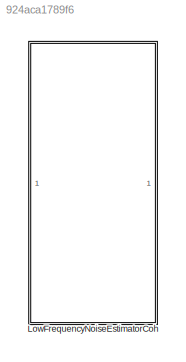
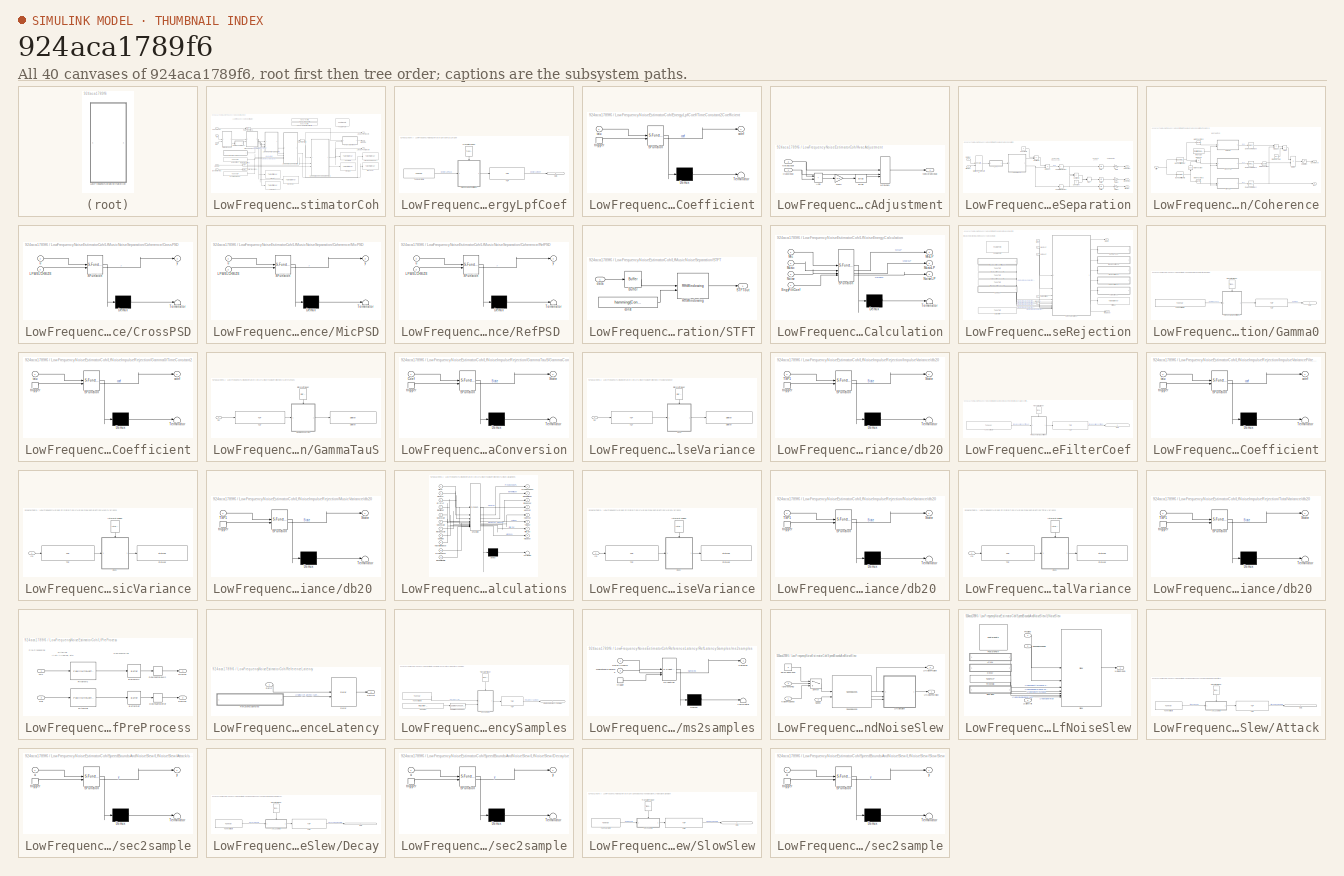
[diagram: thumbnail index - all 40 canvases of the model, root first then tree order]
MODEL slx_924aca1789f6
KIND library
CONFIG AbsTol = auto
CONFIG EnableMultiTasking = off
CONFIG FixedStep = auto
CONFIG MaxStep = auto
CONFIG MinStep = auto
CONFIG RelTol = 1e-3
CONFIG SampleTimeConstraint = Unconstrained
CONFIG SolverName = VariableStepAuto
CONFIG StartTime = 0.0
CONFIG StopTime = 10.0
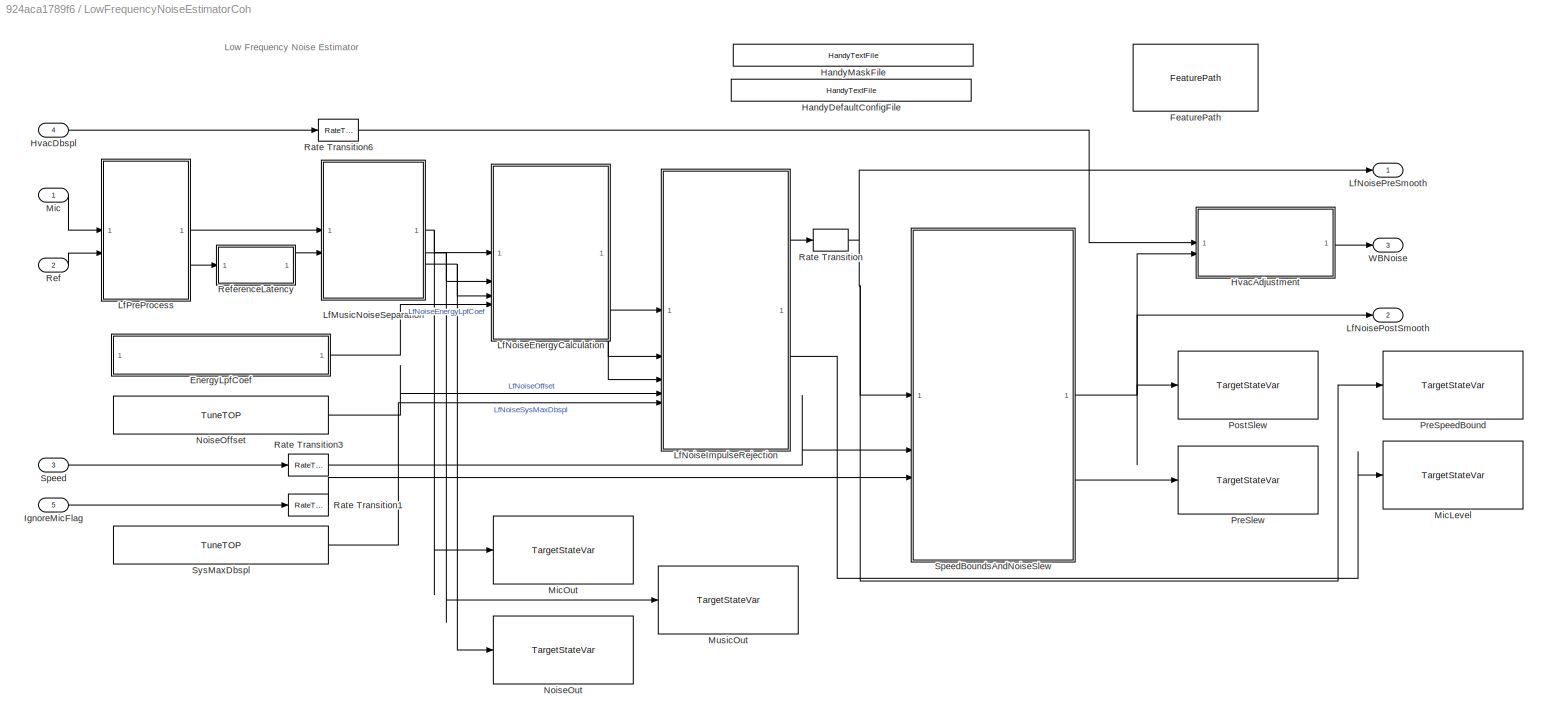
BLOCK [SubSystem] LowFrequencyNoiseEstimatorCoh
BLOCK [SubSystem] LowFrequencyNoiseEstimatorCoh/EnergyLpfCoef
BLOCK [Outport] LowFrequencyNoiseEstimatorCoh/EnergyLpfCoef/Out1
  IconDisplay = Signal name
  VectorParamsAs1DForOutWhenUnconnected = off
BLOCK [Reference] LowFrequencyNoiseEstimatorCoh/EnergyLpfCoef/TOP  REF=TOP/TOP
  SourceBlock = TOP/TOP
  SourceProductName = Bose Talaria
  SourceType = Talaria Target Overlay Parameter
BLOCK [SubSystem] LowFrequencyNoiseEstimatorCoh/EnergyLpfCoef/TimeConstant2Coefficient
  ErrorFcn = Stateflow.Translate.translate
  PermitHierarchicalResolution = ExplicitOnly
  SFBlockType = MATLAB Function
  TreatAsAtomicUnit = on
BLOCK [Demux] LowFrequencyNoiseEstimatorCoh/EnergyLpfCoef/TimeConstant2Coefficient/ Demux 
  Outputs = 1
BLOCK [S-Function] LowFrequencyNoiseEstimatorCoh/EnergyLpfCoef/TimeConstant2Coefficient/ SFunction 
  EnableBusSupport = off
  FunctionName = sf_sfun
  Parameters = DecRate3
  PortCounts = [2 2]
  SFcnIsStateOwnerBlock = off
  SFunctionDeploymentMode = off
  Tag = Stateflow S-Function 9
BLOCK [Terminator] LowFrequencyNoiseEstimatorCoh/EnergyLpfCoef/TimeConstant2Coefficient/ Terminator 
BLOCK [Outport] LowFrequencyNoiseEstimatorCoh/EnergyLpfCoef/TimeConstant2Coefficient/coef
  VectorParamsAs1DForOutWhenUnconnected = off
BLOCK [Inport] LowFrequencyNoiseEstimatorCoh/EnergyLpfCoef/TimeConstant2Coefficient/tau
BLOCK [TriggerPort] LowFrequencyNoiseEstimatorCoh/EnergyLpfCoef/TimeConstant2Coefficient/trigger
  ShowOutputPort = on
  StatesWhenEnabling = held
  TriggerType = function-call
  VariantControl = Variant
BLOCK [Reference] LowFrequencyNoiseEstimatorCoh/EnergyLpfCoef/TranslateTrigger  REF=TuneVar/TranslateTrigger
  NameLocation = left
  SourceBlock = TuneVar/TranslateTrigger
  SourceProductName = Bose Talaria
  SourceType = Talaria Translate Trigger
BLOCK [Reference] LowFrequencyNoiseEstimatorCoh/EnergyLpfCoef/Tune Variable  REF=TuneVar/TuneVar
  SourceBlock = TuneVar/TuneVar
  SourceProductName = Bose Talaria
  SourceType = Talaria Tune Variable
BLOCK [Reference] LowFrequencyNoiseEstimatorCoh/FeaturePath  REF=FeaturePath/FeaturePath
  SourceBlock = FeaturePath/FeaturePath
  SourceProductName = Bose Talaria
  SourceType = Talaria Feature Path
BLOCK [Reference] LowFrequencyNoiseEstimatorCoh/HandyDefaultConfigFile  REF=HandyTextFile/HandyTextFile
  SourceBlock = HandyTextFile/HandyTextFile
  SourceProductName = Bose Talaria
  SourceType = Talaria Handy Text File
BLOCK [Reference] LowFrequencyNoiseEstimatorCoh/HandyMaskFile  REF=HandyTextFile/HandyTextFile
  SourceBlock = HandyTextFile/HandyTextFile
  SourceProductName = Bose Talaria
  SourceType = Talaria Handy Text File
BLOCK [SubSystem] LowFrequencyNoiseEstimatorCoh/HvacAdjustment
BLOCK [Sum] LowFrequencyNoiseEstimatorCoh/HvacAdjustment/Add
  IconShape = rectangular
BLOCK [Bias] LowFrequencyNoiseEstimatorCoh/HvacAdjustment/Bias
  Bias = 3.7
  SaturateOnIntegerOverflow = off
BLOCK [Gain] LowFrequencyNoiseEstimatorCoh/HvacAdjustment/Gain
  Gain = 0.5
BLOCK [Inport] LowFrequencyNoiseEstimatorCoh/HvacAdjustment/HvacDbspl
BLOCK [MinMax] LowFrequencyNoiseEstimatorCoh/HvacAdjustment/MinMax1
  Function = max
  Inputs = 3
BLOCK [Inport] LowFrequencyNoiseEstimatorCoh/HvacAdjustment/NoiseDbspl
  Port = 2
BLOCK [Outport] LowFrequencyNoiseEstimatorCoh/HvacAdjustment/WbNoiseDbspl
  VectorParamsAs1DForOutWhenUnconnected = off
BLOCK [Inport] LowFrequencyNoiseEstimatorCoh/HvacDbspl
  Port = 4
BLOCK [Inport] LowFrequencyNoiseEstimatorCoh/IgnoreMicFlag
  Port = 5
BLOCK [SubSystem] LowFrequencyNoiseEstimatorCoh/LfMusicNoiseSeparation
BLOCK [SubSystem] LowFrequencyNoiseEstimatorCoh/LfMusicNoiseSeparation/Coherence
BLOCK [Sum] LowFrequencyNoiseEstimatorCoh/LfMusicNoiseSeparation/Coherence/Add1
  IconShape = rectangular
BLOCK [Reference] LowFrequencyNoiseEstimatorCoh/LfMusicNoiseSeparation/Coherence/BandLimitingMic  REF=matrix_library/Submatrix
  SourceBlock = matrix_library/Submatrix
  SourceType = Submatrix
BLOCK [Reference] LowFrequencyNoiseEstimatorCoh/LfMusicNoiseSeparation/Coherence/BandLimitingRef  REF=matrix_library/Submatrix
  SourceBlock = matrix_library/Submatrix
  SourceType = Submatrix
BLOCK [Outport] LowFrequencyNoiseEstimatorCoh/LfMusicNoiseSeparation/Coherence/Coherence
  VectorParamsAs1DForOutWhenUnconnected = off
BLOCK [SubSystem] LowFrequencyNoiseEstimatorCoh/LfMusicNoiseSeparation/Coherence/CrossPSD
  ErrorFcn = Stateflow.Translate.translate
  PermitHierarchicalResolution = ExplicitOnly
  SFBlockType = MATLAB Function
  TreatAsAtomicUnit = on
BLOCK [Demux] LowFrequencyNoiseEstimatorCoh/LfMusicNoiseSeparation/Coherence/CrossPSD/ Demux 
  Outputs = 1
BLOCK [S-Function] LowFrequencyNoiseEstimatorCoh/LfMusicNoiseSeparation/Coherence/CrossPSD/ SFunction 
  EnableBusSupport = off
  FunctionName = sf_sfun
  PortCounts = [2 2]
  SFcnIsStateOwnerBlock = off
  SFunctionDeploymentMode = off
  Tag = Stateflow S-Function 22
BLOCK [Terminator] LowFrequencyNoiseEstimatorCoh/LfMusicNoiseSeparation/Coherence/CrossPSD/ Terminator 
BLOCK [Inport] LowFrequencyNoiseEstimatorCoh/LfMusicNoiseSeparation/Coherence/CrossPSD/LFWELCHSIZE
  Port = 2
BLOCK [Inport] LowFrequencyNoiseEstimatorCoh/LfMusicNoiseSeparation/Coherence/CrossPSD/u
BLOCK [Outport] LowFrequencyNoiseEstimatorCoh/LfMusicNoiseSeparation/Coherence/CrossPSD/y
  VectorParamsAs1DForOutWhenUnconnected = off
BLOCK [Product] LowFrequencyNoiseEstimatorCoh/LfMusicNoiseSeparation/Coherence/Divide
  Inputs = /*
BLOCK [Constant] LowFrequencyNoiseEstimatorCoh/LfMusicNoiseSeparation/Coherence/DivideByZero
  OutDataTypeStr = single
  Value = eps
BLOCK [DownSample] LowFrequencyNoiseEstimatorCoh/LfMusicNoiseSeparation/Coherence/DownsampleGxx
  InputProcessing = Elements as channels (sample based)
  N = Config.CoherenceWelchSize
  RateOptions = Allow multirate processing
BLOCK [DownSample] LowFrequencyNoiseEstimatorCoh/LfMusicNoiseSeparation/Coherence/DownsampleGyx
  InputProcessing = Elements as channels (sample based)
  N = Config.CoherenceWelchSize
  RateOptions = Allow multirate processing
BLOCK [DownSample] LowFrequencyNoiseEstimatorCoh/LfMusicNoiseSeparation/Coherence/DownsampleGyy
  InputProcessing = Elements as channels (sample based)
  N = Config.CoherenceWelchSize
  RateOptions = Allow multirate processing
BLOCK [Outport] LowFrequencyNoiseEstimatorCoh/LfMusicNoiseSeparation/Coherence/Gyy
  Port = 2
  VectorParamsAs1DForOutWhenUnconnected = off
BLOCK [Math] LowFrequencyNoiseEstimatorCoh/LfMusicNoiseSeparation/Coherence/Math Function
  NameLocation = right
  Operator = conj
  SignedPower = on
BLOCK [Math] LowFrequencyNoiseEstimatorCoh/LfMusicNoiseSeparation/Coherence/Math Function1
  Operator = magnitude^2
  SignedPower = on
BLOCK [Math] LowFrequencyNoiseEstimatorCoh/LfMusicNoiseSeparation/Coherence/Math Function2
  Operator = magnitude^2
  SignedPower = on
BLOCK [Math] LowFrequencyNoiseEstimatorCoh/LfMusicNoiseSeparation/Coherence/Math Function3
  Operator = magnitude^2
  SignedPower = on
BLOCK [SubSystem] LowFrequencyNoiseEstimatorCoh/LfMusicNoiseSeparation/Coherence/MicPSD
  ErrorFcn = Stateflow.Translate.translate
  PermitHierarchicalResolution = ExplicitOnly
  SFBlockType = MATLAB Function
  TreatAsAtomicUnit = on
BLOCK [Demux] LowFrequencyNoiseEstimatorCoh/LfMusicNoiseSeparation/Coherence/MicPSD/ Demux 
  Outputs = 1
BLOCK [S-Function] LowFrequencyNoiseEstimatorCoh/LfMusicNoiseSeparation/Coherence/MicPSD/ SFunction 
  EnableBusSupport = off
  FunctionName = sf_sfun
  PortCounts = [2 2]
  SFcnIsStateOwnerBlock = off
  SFunctionDeploymentMode = off
  Tag = Stateflow S-Function 25
BLOCK [Terminator] LowFrequencyNoiseEstimatorCoh/LfMusicNoiseSeparation/Coherence/MicPSD/ Terminator 
BLOCK [Inport] LowFrequencyNoiseEstimatorCoh/LfMusicNoiseSeparation/Coherence/MicPSD/LFWELCHSIZE
  Port = 2
BLOCK [Inport] LowFrequencyNoiseEstimatorCoh/LfMusicNoiseSeparation/Coherence/MicPSD/u
BLOCK [Outport] LowFrequencyNoiseEstimatorCoh/LfMusicNoiseSeparation/Coherence/MicPSD/y
  VectorParamsAs1DForOutWhenUnconnected = off
BLOCK [Product] LowFrequencyNoiseEstimatorCoh/LfMusicNoiseSeparation/Coherence/Product
  RndMeth = Zero
BLOCK [Product] LowFrequencyNoiseEstimatorCoh/LfMusicNoiseSeparation/Coherence/Product3
  RndMeth = Zero
BLOCK [SubSystem] LowFrequencyNoiseEstimatorCoh/LfMusicNoiseSeparation/Coherence/RefPSD 
  ErrorFcn = Stateflow.Translate.translate
  PermitHierarchicalResolution = ExplicitOnly
  SFBlockType = MATLAB Function
  TreatAsAtomicUnit = on
BLOCK [Demux] LowFrequencyNoiseEstimatorCoh/LfMusicNoiseSeparation/Coherence/RefPSD / Demux 
  Outputs = 1
BLOCK [S-Function] LowFrequencyNoiseEstimatorCoh/LfMusicNoiseSeparation/Coherence/RefPSD / SFunction 
  EnableBusSupport = off
  FunctionName = sf_sfun
  PortCounts = [2 2]
  SFcnIsStateOwnerBlock = off
  SFunctionDeploymentMode = off
  Tag = Stateflow S-Function 20
BLOCK [Terminator] LowFrequencyNoiseEstimatorCoh/LfMusicNoiseSeparation/Coherence/RefPSD / Terminator 
BLOCK [Inport] LowFrequencyNoiseEstimatorCoh/LfMusicNoiseSeparation/Coherence/RefPSD /LFWELCHSIZE
  Port = 2
BLOCK [Inport] LowFrequencyNoiseEstimatorCoh/LfMusicNoiseSeparation/Coherence/RefPSD /u
BLOCK [Outport] LowFrequencyNoiseEstimatorCoh/LfMusicNoiseSeparation/Coherence/RefPSD /y
  VectorParamsAs1DForOutWhenUnconnected = off
BLOCK [Saturate] LowFrequencyNoiseEstimatorCoh/LfMusicNoiseSeparation/Coherence/Saturation
  LowerLimit = 0
  UpperLimit = 1
BLOCK [Inport] LowFrequencyNoiseEstimatorCoh/LfMusicNoiseSeparation/Coherence/StftIn
BLOCK [Constant] LowFrequencyNoiseEstimatorCoh/LfMusicNoiseSeparation/Coherence/WelchSize
  OutDataTypeStr = single
  Value = Config.CoherenceWelchSize
BLOCK [Constant] LowFrequencyNoiseEstimatorCoh/LfMusicNoiseSeparation/Constant
  OutDataTypeStr = single
  Value = 0
BLOCK [Constant] LowFrequencyNoiseEstimatorCoh/LfMusicNoiseSeparation/Constant1
  OutDataTypeStr = single
BLOCK [Gain] LowFrequencyNoiseEstimatorCoh/LfMusicNoiseSeparation/Gain
  Gain = 2/Config.CoherenceFftSize
BLOCK [Gain] LowFrequencyNoiseEstimatorCoh/LfMusicNoiseSeparation/Gain2
  Gain = 2/Config.CoherenceFftSize
BLOCK [Gain] LowFrequencyNoiseEstimatorCoh/LfMusicNoiseSeparation/Gain3
  Gain = 2/Config.CoherenceFftSize
BLOCK [Concatenate] LowFrequencyNoiseEstimatorCoh/LfMusicNoiseSeparation/Matrix Concatenate1
  ConcatenateDimension = 2
  Mode = Multidimensional array
BLOCK [MinMax] LowFrequencyNoiseEstimatorCoh/LfMusicNoiseSeparation/Max
  Function = max
  Inputs = 2
BLOCK [Inport] LowFrequencyNoiseEstimatorCoh/LfMusicNoiseSeparation/MicDec
BLOCK [Outport] LowFrequencyNoiseEstimatorCoh/LfMusicNoiseSeparation/MicOut
  VectorParamsAs1DForOutWhenUnconnected = off
BLOCK [Outport] LowFrequencyNoiseEstimatorCoh/LfMusicNoiseSeparation/MusicOut
  Port = 2
  VectorParamsAs1DForOutWhenUnconnected = off
BLOCK [Outport] LowFrequencyNoiseEstimatorCoh/LfMusicNoiseSeparation/NoiseOut
  Port = 3
  VectorParamsAs1DForOutWhenUnconnected = off
BLOCK [Product] LowFrequencyNoiseEstimatorCoh/LfMusicNoiseSeparation/Product
  RndMeth = Zero
BLOCK [Inport] LowFrequencyNoiseEstimatorCoh/LfMusicNoiseSeparation/RefDec
  Port = 2
BLOCK [SubSystem] LowFrequencyNoiseEstimatorCoh/LfMusicNoiseSeparation/STFT
BLOCK [Buffer] LowFrequencyNoiseEstimatorCoh/LfMusicNoiseSeparation/STFT/Buffer
  N = Config.CoherenceFftSize
  V = Config.CoherenceOverlap
BLOCK [Reference] LowFrequencyNoiseEstimatorCoh/LfMusicNoiseSeparation/STFT/RfftWindowing  REF=RfftLib/RfftWindowing
  Description = This block computes the Fourier Transform using an optimized FFT for real 2-channel input.
  SourceBlock = RfftLib/RfftWindowing
  SourceProductName = Bose Blocklib
  SourceType = Real FFT With Windowing
BLOCK [Outport] LowFrequencyNoiseEstimatorCoh/LfMusicNoiseSeparation/STFT/STFTout
  VectorParamsAs1DForOutWhenUnconnected = off
BLOCK [Constant] LowFrequencyNoiseEstimatorCoh/LfMusicNoiseSeparation/STFT/const
  OutDataTypeStr = single
  Value = hamming(Config.CoherenceFftSize)
BLOCK [Inport] LowFrequencyNoiseEstimatorCoh/LfMusicNoiseSeparation/STFT/data
BLOCK [Sqrt] LowFrequencyNoiseEstimatorCoh/LfMusicNoiseSeparation/Sqrt
BLOCK [Sqrt] LowFrequencyNoiseEstimatorCoh/LfMusicNoiseSeparation/Sqrt1
BLOCK [Sqrt] LowFrequencyNoiseEstimatorCoh/LfMusicNoiseSeparation/Sqrt2
BLOCK [Sum] LowFrequencyNoiseEstimatorCoh/LfMusicNoiseSeparation/Subtract1
  IconShape = rectangular
  Inputs = +-
BLOCK [Sum] LowFrequencyNoiseEstimatorCoh/LfMusicNoiseSeparation/Subtract2
  IconShape = rectangular
  Inputs = -+
BLOCK [Sum] LowFrequencyNoiseEstimatorCoh/LfMusicNoiseSeparation/Sum of Elements2
  IconShape = rectangular
  Inputs = +
BLOCK [Sum] LowFrequencyNoiseEstimatorCoh/LfMusicNoiseSeparation/Sum of Elements3
  IconShape = rectangular
  Inputs = +
BLOCK [SubSystem] LowFrequencyNoiseEstimatorCoh/LfNoiseEnergyCalculation
  ErrorFcn = Stateflow.Translate.translate
  PermitHierarchicalResolution = ExplicitOnly
  SFBlockType = MATLAB Function
  TreatAsAtomicUnit = on
BLOCK [Demux] LowFrequencyNoiseEstimatorCoh/LfNoiseEnergyCalculation/ Demux 
  Outputs = 1
BLOCK [S-Function] LowFrequencyNoiseEstimatorCoh/LfNoiseEnergyCalculation/ SFunction 
  EnableBusSupport = off
  FunctionName = sf_sfun
  PortCounts = [4 4]
  SFcnIsStateOwnerBlock = off
  SFunctionDeploymentMode = off
  Tag = Stateflow S-Function 10
BLOCK [Terminator] LowFrequencyNoiseEstimatorCoh/LfNoiseEnergyCalculation/ Terminator 
BLOCK [Inport] LowFrequencyNoiseEstimatorCoh/LfNoiseEnergyCalculation/EngyFiltCoef
  Port = 4
BLOCK [Inport] LowFrequencyNoiseEstimatorCoh/LfNoiseEnergyCalculation/Mic
BLOCK [Outport] LowFrequencyNoiseEstimatorCoh/LfNoiseEnergyCalculation/MicLP
  VectorParamsAs1DForOutWhenUnconnected = off
BLOCK [Inport] LowFrequencyNoiseEstimatorCoh/LfNoiseEnergyCalculation/Music
  Port = 2
BLOCK [Outport] LowFrequencyNoiseEstimatorCoh/LfNoiseEnergyCalculation/MusicLP
  Port = 2
  VectorParamsAs1DForOutWhenUnconnected = off
BLOCK [Inport] LowFrequencyNoiseEstimatorCoh/LfNoiseEnergyCalculation/Noise
  Port = 3
BLOCK [Outport] LowFrequencyNoiseEstimatorCoh/LfNoiseEnergyCalculation/NoiseLP
  Port = 3
  VectorParamsAs1DForOutWhenUnconnected = off
BLOCK [SubSystem] LowFrequencyNoiseEstimatorCoh/LfNoiseImpulseRejection
BLOCK [Reference] LowFrequencyNoiseEstimatorCoh/LfNoiseImpulseRejection/FeaturePath  REF=FeaturePath/FeaturePath
  SourceBlock = FeaturePath/FeaturePath
  SourceProductName = Bose Talaria
  SourceType = Talaria Feature Path
BLOCK [Reference] LowFrequencyNoiseEstimatorCoh/LfNoiseImpulseRejection/FilterOut  REF=StateVar/TargetStateVar
  SourceBlock = StateVar/TargetStateVar
  SourceProductName = Bose Talaria
  SourceType = Talaria Target State Variable
BLOCK [SubSystem] LowFrequencyNoiseEstimatorCoh/LfNoiseImpulseRejection/Gamma0
BLOCK [Outport] LowFrequencyNoiseEstimatorCoh/LfNoiseImpulseRejection/Gamma0/Out1
  IconDisplay = Signal name
  VectorParamsAs1DForOutWhenUnconnected = off
BLOCK [Reference] LowFrequencyNoiseEstimatorCoh/LfNoiseImpulseRejection/Gamma0/TOP  REF=TOP/TOP
  SourceBlock = TOP/TOP
  SourceProductName = Bose Talaria
  SourceType = Talaria Target Overlay Parameter
BLOCK [SubSystem] LowFrequencyNoiseEstimatorCoh/LfNoiseImpulseRejection/Gamma0/TimeConstant2Coefficient
  ErrorFcn = Stateflow.Translate.translate
  PermitHierarchicalResolution = ExplicitOnly
  SFBlockType = MATLAB Function
  TreatAsAtomicUnit = on
BLOCK [Demux] LowFrequencyNoiseEstimatorCoh/LfNoiseImpulseRejection/Gamma0/TimeConstant2Coefficient/ Demux 
  Outputs = 1
BLOCK [S-Function] LowFrequencyNoiseEstimatorCoh/LfNoiseImpulseRejection/Gamma0/TimeConstant2Coefficient/ SFunction 
  EnableBusSupport = off
  FunctionName = sf_sfun
  Parameters = DecRate3
  PortCounts = [2 2]
  SFcnIsStateOwnerBlock = off
  SFunctionDeploymentMode = off
  Tag = Stateflow S-Function 8
BLOCK [Terminator] LowFrequencyNoiseEstimatorCoh/LfNoiseImpulseRejection/Gamma0/TimeConstant2Coefficient/ Terminator 
BLOCK [Outport] LowFrequencyNoiseEstimatorCoh/LfNoiseImpulseRejection/Gamma0/TimeConstant2Coefficient/coef
  VectorParamsAs1DForOutWhenUnconnected = off
BLOCK [Inport] LowFrequencyNoiseEstimatorCoh/LfNoiseImpulseRejection/Gamma0/TimeConstant2Coefficient/tau
BLOCK [TriggerPort] LowFrequencyNoiseEstimatorCoh/LfNoiseImpulseRejection/Gamma0/TimeConstant2Coefficient/trigger
  ShowOutputPort = on
  StatesWhenEnabling = held
  TriggerType = function-call
  VariantControl = Variant
BLOCK [Reference] LowFrequencyNoiseEstimatorCoh/LfNoiseImpulseRejection/Gamma0/TranslateTrigger  REF=TuneVar/TranslateTrigger
  NameLocation = left
  SourceBlock = TuneVar/TranslateTrigger
  SourceProductName = Bose Talaria
  SourceType = Talaria Translate Trigger
BLOCK [Reference] LowFrequencyNoiseEstimatorCoh/LfNoiseImpulseRejection/Gamma0/Tune Variable  REF=TuneVar/TuneVar
  SourceBlock = TuneVar/TuneVar
  SourceProductName = Bose Talaria
  SourceType = Talaria Tune Variable
BLOCK [SubSystem] LowFrequencyNoiseEstimatorCoh/LfNoiseImpulseRejection/GammaTauS
BLOCK [SubSystem] LowFrequencyNoiseEstimatorCoh/LfNoiseImpulseRejection/GammaTauS/GammaConversion
  ErrorFcn = Stateflow.Translate.translate
  PermitHierarchicalResolution = ExplicitOnly
  SFBlockType = MATLAB Function
  TreatAsAtomicUnit = on
BLOCK [Demux] LowFrequencyNoiseEstimatorCoh/LfNoiseImpulseRejection/GammaTauS/GammaConversion/ Demux 
  Outputs = 1
BLOCK [S-Function] LowFrequencyNoiseEstimatorCoh/LfNoiseImpulseRejection/GammaTauS/GammaConversion/ SFunction 
  EnableBusSupport = off
  FunctionName = sf_sfun
  Parameters = DecRate3
  PortCounts = [2 2]
  SFcnIsStateOwnerBlock = off
  SFunctionDeploymentMode = off
  Tag = Stateflow S-Function 14
BLOCK [Terminator] LowFrequencyNoiseEstimatorCoh/LfNoiseImpulseRejection/GammaTauS/GammaConversion/ Terminator 
BLOCK [Inport] LowFrequencyNoiseEstimatorCoh/LfNoiseImpulseRejection/GammaTauS/GammaConversion/Coef
BLOCK [Outport] LowFrequencyNoiseEstimatorCoh/LfNoiseImpulseRejection/GammaTauS/GammaConversion/State
  VectorParamsAs1DForOutWhenUnconnected = off
BLOCK [TriggerPort] LowFrequencyNoiseEstimatorCoh/LfNoiseImpulseRejection/GammaTauS/GammaConversion/trigger
  ShowOutputPort = on
  StatesWhenEnabling = held
  TriggerType = function-call
  VariantControl = Variant
BLOCK [Inport] LowFrequencyNoiseEstimatorCoh/LfNoiseImpulseRejection/GammaTauS/In1
BLOCK [Reference] LowFrequencyNoiseEstimatorCoh/LfNoiseImpulseRejection/GammaTauS/InterpretTrigger  REF=StateVar/InterpretTrigger
  NameLocation = left
  SourceBlock = StateVar/InterpretTrigger
  SourceProductName = Bose Talaria
  SourceType = Talaria Interpret Trigger
BLOCK [Reference] LowFrequencyNoiseEstimatorCoh/LfNoiseImpulseRejection/GammaTauS/StateVar  REF=StateVar/StateVar
  SourceBlock = StateVar/StateVar
  SourceProductName = Bose Talaria
  SourceType = Talaria State Variable
BLOCK [Reference] LowFrequencyNoiseEstimatorCoh/LfNoiseImpulseRejection/GammaTauS/TSP  REF=TSP/TSP
  SourceBlock = TSP/TSP
  SourceProductName = Bose Talaria
  SourceType = Talaria Target State Probe
BLOCK [SubSystem] LowFrequencyNoiseEstimatorCoh/LfNoiseImpulseRejection/ImpulseVariance
BLOCK [Inport] LowFrequencyNoiseEstimatorCoh/LfNoiseImpulseRejection/ImpulseVariance/In1
BLOCK [Reference] LowFrequencyNoiseEstimatorCoh/LfNoiseImpulseRejection/ImpulseVariance/InterpretTrigger  REF=StateVar/InterpretTrigger
  NameLocation = left
  SourceBlock = StateVar/InterpretTrigger
  SourceProductName = Bose Talaria
  SourceType = Talaria Interpret Trigger
BLOCK [Reference] LowFrequencyNoiseEstimatorCoh/LfNoiseImpulseRejection/ImpulseVariance/StateVar  REF=StateVar/StateVar
  SourceBlock = StateVar/StateVar
  SourceProductName = Bose Talaria
  SourceType = Talaria State Variable
BLOCK [Reference] LowFrequencyNoiseEstimatorCoh/LfNoiseImpulseRejection/ImpulseVariance/TSP  REF=TSP/TSP
  SourceBlock = TSP/TSP
  SourceProductName = Bose Talaria
  SourceType = Talaria Target State Probe
BLOCK [SubSystem] LowFrequencyNoiseEstimatorCoh/LfNoiseImpulseRejection/ImpulseVariance/db20
  ErrorFcn = Stateflow.Translate.translate
  PermitHierarchicalResolution = ExplicitOnly
  SFBlockType = MATLAB Function
  TreatAsAtomicUnit = on
BLOCK [Demux] LowFrequencyNoiseEstimatorCoh/LfNoiseImpulseRejection/ImpulseVariance/db20/ Demux 
  Outputs = 1
BLOCK [S-Function] LowFrequencyNoiseEstimatorCoh/LfNoiseImpulseRejection/ImpulseVariance/db20/ SFunction 
  EnableBusSupport = off
  FunctionName = sf_sfun
  PortCounts = [2 2]
  SFcnIsStateOwnerBlock = off
  SFunctionDeploymentMode = off
  Tag = Stateflow S-Function 11
BLOCK [Terminator] LowFrequencyNoiseEstimatorCoh/LfNoiseImpulseRejection/ImpulseVariance/db20/ Terminator 
BLOCK [Outport] LowFrequencyNoiseEstimatorCoh/LfNoiseImpulseRejection/ImpulseVariance/db20/State
  VectorParamsAs1DForOutWhenUnconnected = off
BLOCK [Inport] LowFrequencyNoiseEstimatorCoh/LfNoiseImpulseRejection/ImpulseVariance/db20/TSP1
BLOCK [TriggerPort] LowFrequencyNoiseEstimatorCoh/LfNoiseImpulseRejection/ImpulseVariance/db20/trigger
  ShowOutputPort = on
  StatesWhenEnabling = held
  TriggerType = function-call
  VariantControl = Variant
BLOCK [SubSystem] LowFrequencyNoiseEstimatorCoh/LfNoiseImpulseRejection/ImpulseVarianceFilterCoef
BLOCK [Outport] LowFrequencyNoiseEstimatorCoh/LfNoiseImpulseRejection/ImpulseVarianceFilterCoef/Out1
  IconDisplay = Signal name
  VectorParamsAs1DForOutWhenUnconnected = off
BLOCK [Reference] LowFrequencyNoiseEstimatorCoh/LfNoiseImpulseRejection/ImpulseVarianceFilterCoef/TOP  REF=TOP/TOP
  SourceBlock = TOP/TOP
  SourceProductName = Bose Talaria
  SourceType = Talaria Target Overlay Parameter
BLOCK [SubSystem] LowFrequencyNoiseEstimatorCoh/LfNoiseImpulseRejection/ImpulseVarianceFilterCoef/TimeConstant2Coefficient
  ErrorFcn = Stateflow.Translate.translate
  PermitHierarchicalResolution = ExplicitOnly
  SFBlockType = MATLAB Function
  TreatAsAtomicUnit = on
BLOCK [Demux] LowFrequencyNoiseEstimatorCoh/LfNoiseImpulseRejection/ImpulseVarianceFilterCoef/TimeConstant2Coefficient/ Demux 
  Outputs = 1
BLOCK [S-Function] LowFrequencyNoiseEstimatorCoh/LfNoiseImpulseRejection/ImpulseVarianceFilterCoef/TimeConstant2Coefficient/ SFunction 
  EnableBusSupport = off
  FunctionName = sf_sfun
  Parameters = DecRate3
  PortCounts = [2 2]
  SFcnIsStateOwnerBlock = off
  SFunctionDeploymentMode = off
  Tag = Stateflow S-Function 7
BLOCK [Terminator] LowFrequencyNoiseEstimatorCoh/LfNoiseImpulseRejection/ImpulseVarianceFilterCoef/TimeConstant2Coefficient/ Terminator 
BLOCK [Outport] LowFrequencyNoiseEstimatorCoh/LfNoiseImpulseRejection/ImpulseVarianceFilterCoef/TimeConstant2Coefficient/coef
  VectorParamsAs1DForOutWhenUnconnected = off
BLOCK [Inport] LowFrequencyNoiseEstimatorCoh/LfNoiseImpulseRejection/ImpulseVarianceFilterCoef/TimeConstant2Coefficient/tau
BLOCK [TriggerPort] LowFrequencyNoiseEstimatorCoh/LfNoiseImpulseRejection/ImpulseVarianceFilterCoef/TimeConstant2Coefficient/trigger
  ShowOutputPort = on
  StatesWhenEnabling = held
  TriggerType = function-call
  VariantControl = Variant
BLOCK [Reference] LowFrequencyNoiseEstimatorCoh/LfNoiseImpulseRejection/ImpulseVarianceFilterCoef/TranslateTrigger  REF=TuneVar/TranslateTrigger
  NameLocation = left
  SourceBlock = TuneVar/TranslateTrigger
  SourceProductName = Bose Talaria
  SourceType = Talaria Translate Trigger
BLOCK [Reference] LowFrequencyNoiseEstimatorCoh/LfNoiseImpulseRejection/ImpulseVarianceFilterCoef/Tune Variable  REF=TuneVar/TuneVar
  SourceBlock = TuneVar/TuneVar
  SourceProductName = Bose Talaria
  SourceType = Talaria Tune Variable
BLOCK [Reference] LowFrequencyNoiseEstimatorCoh/LfNoiseImpulseRejection/ImpulseVarianceScale  REF=TuneVar/TuneTOP
  SourceBlock = TuneVar/TuneTOP
  SourceProductName = Bose Talaria
  SourceType = Talaria Trivial Tune TOP
BLOCK [Inport] LowFrequencyNoiseEstimatorCoh/LfNoiseImpulseRejection/MaxSpl
  Port = 5
BLOCK [Outport] LowFrequencyNoiseEstimatorCoh/LfNoiseImpulseRejection/MicDbspl
  Port = 2
  VectorParamsAs1DForOutWhenUnconnected = off
BLOCK [Inport] LowFrequencyNoiseEstimatorCoh/LfNoiseImpulseRejection/MicLP
  SampleTime = 1/DecRate3
BLOCK [Inport] LowFrequencyNoiseEstimatorCoh/LfNoiseImpulseRejection/MusicLP
  Port = 2
  SampleTime = 1/DecRate3
BLOCK [SubSystem] LowFrequencyNoiseEstimatorCoh/LfNoiseImpulseRejection/MusicVariance
BLOCK [Inport] LowFrequencyNoiseEstimatorCoh/LfNoiseImpulseRejection/MusicVariance/In1
BLOCK [Reference] LowFrequencyNoiseEstimatorCoh/LfNoiseImpulseRejection/MusicVariance/InterpretTrigger  REF=StateVar/InterpretTrigger
  NameLocation = left
  SourceBlock = StateVar/InterpretTrigger
  SourceProductName = Bose Talaria
  SourceType = Talaria Interpret Trigger
BLOCK [Reference] LowFrequencyNoiseEstimatorCoh/LfNoiseImpulseRejection/MusicVariance/StateVar  REF=StateVar/StateVar
  SourceBlock = StateVar/StateVar
  SourceProductName = Bose Talaria
  SourceType = Talaria State Variable
BLOCK [Reference] LowFrequencyNoiseEstimatorCoh/LfNoiseImpulseRejection/MusicVariance/TSP  REF=TSP/TSP
  SourceBlock = TSP/TSP
  SourceProductName = Bose Talaria
  SourceType = Talaria Target State Probe
BLOCK [SubSystem] LowFrequencyNoiseEstimatorCoh/LfNoiseImpulseRejection/MusicVariance/db20 
  ErrorFcn = Stateflow.Translate.translate
  PermitHierarchicalResolution = ExplicitOnly
  SFBlockType = MATLAB Function
  TreatAsAtomicUnit = on
BLOCK [Demux] LowFrequencyNoiseEstimatorCoh/LfNoiseImpulseRejection/MusicVariance/db20 / Demux 
  Outputs = 1
BLOCK [S-Function] LowFrequencyNoiseEstimatorCoh/LfNoiseImpulseRejection/MusicVariance/db20 / SFunction 
  EnableBusSupport = off
  FunctionName = sf_sfun
  PortCounts = [2 2]
  SFcnIsStateOwnerBlock = off
  SFunctionDeploymentMode = off
  Tag = Stateflow S-Function 5
BLOCK [Terminator] LowFrequencyNoiseEstimatorCoh/LfNoiseImpulseRejection/MusicVariance/db20 / Terminator 
BLOCK [Outport] LowFrequencyNoiseEstimatorCoh/LfNoiseImpulseRejection/MusicVariance/db20 /State
  VectorParamsAs1DForOutWhenUnconnected = off
BLOCK [Inport] LowFrequencyNoiseEstimatorCoh/LfNoiseImpulseRejection/MusicVariance/db20 /TSP1
BLOCK [TriggerPort] LowFrequencyNoiseEstimatorCoh/LfNoiseImpulseRejection/MusicVariance/db20 /trigger
  ShowOutputPort = on
  StatesWhenEnabling = held
  TriggerType = function-call
  VariantControl = Variant
BLOCK [Reference] LowFrequencyNoiseEstimatorCoh/LfNoiseImpulseRejection/MusicVarianceScale  REF=TuneVar/TuneTOP
  SourceBlock = TuneVar/TuneTOP
  SourceProductName = Bose Talaria
  SourceType = Talaria Trivial Tune TOP
BLOCK [Outport] LowFrequencyNoiseEstimatorCoh/LfNoiseImpulseRejection/Noise
  VectorParamsAs1DForOutWhenUnconnected = off
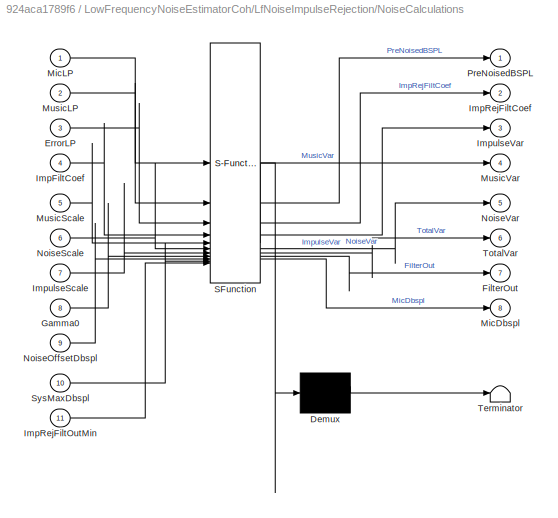
BLOCK [SubSystem] LowFrequencyNoiseEstimatorCoh/LfNoiseImpulseRejection/NoiseCalculations
  ErrorFcn = Stateflow.Translate.translate
  PermitHierarchicalResolution = ExplicitOnly
  SFBlockType = MATLAB Function
  TreatAsAtomicUnit = on
BLOCK [Demux] LowFrequencyNoiseEstimatorCoh/LfNoiseImpulseRejection/NoiseCalculations/ Demux 
  Outputs = 1
BLOCK [S-Function] LowFrequencyNoiseEstimatorCoh/LfNoiseImpulseRejection/NoiseCalculations/ SFunction 
  EnableBusSupport = off
  FunctionName = sf_sfun
  PortCounts = [11 9]
  SFcnIsStateOwnerBlock = off
  SFunctionDeploymentMode = off
  Tag = Stateflow S-Function 3
BLOCK [Terminator] LowFrequencyNoiseEstimatorCoh/LfNoiseImpulseRejection/NoiseCalculations/ Terminator 
BLOCK [Inport] LowFrequencyNoiseEstimatorCoh/LfNoiseImpulseRejection/NoiseCalculations/ErrorLP
  Port = 3
BLOCK [Outport] LowFrequencyNoiseEstimatorCoh/LfNoiseImpulseRejection/NoiseCalculations/FilterOut
  Port = 7
  VectorParamsAs1DForOutWhenUnconnected = off
BLOCK [Inport] LowFrequencyNoiseEstimatorCoh/LfNoiseImpulseRejection/NoiseCalculations/Gamma0
  Port = 8
BLOCK [Inport] LowFrequencyNoiseEstimatorCoh/LfNoiseImpulseRejection/NoiseCalculations/ImpFiltCoef
  Port = 4
BLOCK [Outport] LowFrequencyNoiseEstimatorCoh/LfNoiseImpulseRejection/NoiseCalculations/ImpRejFiltCoef
  Port = 2
  VectorParamsAs1DForOutWhenUnconnected = off
BLOCK [Inport] LowFrequencyNoiseEstimatorCoh/LfNoiseImpulseRejection/NoiseCalculations/ImpRejFiltOutMin
  Port = 11
BLOCK [Inport] LowFrequencyNoiseEstimatorCoh/LfNoiseImpulseRejection/NoiseCalculations/ImpulseScale
  Port = 7
BLOCK [Outport] LowFrequencyNoiseEstimatorCoh/LfNoiseImpulseRejection/NoiseCalculations/ImpulseVar
  Port = 3
  VectorParamsAs1DForOutWhenUnconnected = off
BLOCK [Outport] LowFrequencyNoiseEstimatorCoh/LfNoiseImpulseRejection/NoiseCalculations/MicDbspl
  Port = 8
  VectorParamsAs1DForOutWhenUnconnected = off
BLOCK [Inport] LowFrequencyNoiseEstimatorCoh/LfNoiseImpulseRejection/NoiseCalculations/MicLP
BLOCK [Inport] LowFrequencyNoiseEstimatorCoh/LfNoiseImpulseRejection/NoiseCalculations/MusicLP
  Port = 2
BLOCK [Inport] LowFrequencyNoiseEstimatorCoh/LfNoiseImpulseRejection/NoiseCalculations/MusicScale
  Port = 5
BLOCK [Outport] LowFrequencyNoiseEstimatorCoh/LfNoiseImpulseRejection/NoiseCalculations/MusicVar
  Port = 4
  VectorParamsAs1DForOutWhenUnconnected = off
BLOCK [Inport] LowFrequencyNoiseEstimatorCoh/LfNoiseImpulseRejection/NoiseCalculations/NoiseOffsetDbspl
  Port = 9
BLOCK [Inport] LowFrequencyNoiseEstimatorCoh/LfNoiseImpulseRejection/NoiseCalculations/NoiseScale
  Port = 6
BLOCK [Outport] LowFrequencyNoiseEstimatorCoh/LfNoiseImpulseRejection/NoiseCalculations/NoiseVar
  Port = 5
  VectorParamsAs1DForOutWhenUnconnected = off
BLOCK [Outport] LowFrequencyNoiseEstimatorCoh/LfNoiseImpulseRejection/NoiseCalculations/PreNoisedBSPL
  VectorParamsAs1DForOutWhenUnconnected = off
BLOCK [Inport] LowFrequencyNoiseEstimatorCoh/LfNoiseImpulseRejection/NoiseCalculations/SysMaxDbspl
  Port = 10
BLOCK [Outport] LowFrequencyNoiseEstimatorCoh/LfNoiseImpulseRejection/NoiseCalculations/TotalVar
  Port = 6
  VectorParamsAs1DForOutWhenUnconnected = off
BLOCK [Inport] LowFrequencyNoiseEstimatorCoh/LfNoiseImpulseRejection/NoiseLP
  Port = 3
  SampleTime = 1/DecRate3
BLOCK [Inport] LowFrequencyNoiseEstimatorCoh/LfNoiseImpulseRejection/NoiseOffset
  Port = 4
BLOCK [SubSystem] LowFrequencyNoiseEstimatorCoh/LfNoiseImpulseRejection/NoiseVariance
BLOCK [Inport] LowFrequencyNoiseEstimatorCoh/LfNoiseImpulseRejection/NoiseVariance/In1
BLOCK [Reference] LowFrequencyNoiseEstimatorCoh/LfNoiseImpulseRejection/NoiseVariance/InterpretTrigger  REF=StateVar/InterpretTrigger
  NameLocation = left
  SourceBlock = StateVar/InterpretTrigger
  SourceProductName = Bose Talaria
  SourceType = Talaria Interpret Trigger
BLOCK [Reference] LowFrequencyNoiseEstimatorCoh/LfNoiseImpulseRejection/NoiseVariance/StateVar  REF=StateVar/StateVar
  SourceBlock = StateVar/StateVar
  SourceProductName = Bose Talaria
  SourceType = Talaria State Variable
BLOCK [Reference] LowFrequencyNoiseEstimatorCoh/LfNoiseImpulseRejection/NoiseVariance/TSP  REF=TSP/TSP
  SourceBlock = TSP/TSP
  SourceProductName = Bose Talaria
  SourceType = Talaria Target State Probe
BLOCK [SubSystem] LowFrequencyNoiseEstimatorCoh/LfNoiseImpulseRejection/NoiseVariance/db20 
  ErrorFcn = Stateflow.Translate.translate
  PermitHierarchicalResolution = ExplicitOnly
  SFBlockType = MATLAB Function
  TreatAsAtomicUnit = on
BLOCK [Demux] LowFrequencyNoiseEstimatorCoh/LfNoiseImpulseRejection/NoiseVariance/db20 / Demux 
  Outputs = 1
BLOCK [S-Function] LowFrequencyNoiseEstimatorCoh/LfNoiseImpulseRejection/NoiseVariance/db20 / SFunction 
  EnableBusSupport = off
  FunctionName = sf_sfun
  PortCounts = [2 2]
  SFcnIsStateOwnerBlock = off
  SFunctionDeploymentMode = off
  Tag = Stateflow S-Function 12
BLOCK [Terminator] LowFrequencyNoiseEstimatorCoh/LfNoiseImpulseRejection/NoiseVariance/db20 / Terminator 
BLOCK [Outport] LowFrequencyNoiseEstimatorCoh/LfNoiseImpulseRejection/NoiseVariance/db20 /State
  VectorParamsAs1DForOutWhenUnconnected = off
BLOCK [Inport] LowFrequencyNoiseEstimatorCoh/LfNoiseImpulseRejection/NoiseVariance/db20 /TSP1
BLOCK [TriggerPort] LowFrequencyNoiseEstimatorCoh/LfNoiseImpulseRejection/NoiseVariance/db20 /trigger
  ShowOutputPort = on
  StatesWhenEnabling = held
  TriggerType = function-call
  VariantControl = Variant
BLOCK [Reference] LowFrequencyNoiseEstimatorCoh/LfNoiseImpulseRejection/NoiseVarianceScale  REF=TuneVar/TuneTOP
  SourceBlock = TuneVar/TuneTOP
  SourceProductName = Bose Talaria
  SourceType = Talaria Trivial Tune TOP
BLOCK [Reference] LowFrequencyNoiseEstimatorCoh/LfNoiseImpulseRejection/OutputMin   REF=TuneVar/TuneTOP
  SourceBlock = TuneVar/TuneTOP
  SourceProductName = Bose Talaria
  SourceType = Talaria Trivial Tune TOP
BLOCK [SubSystem] LowFrequencyNoiseEstimatorCoh/LfNoiseImpulseRejection/TotalVariance
BLOCK [Inport] LowFrequencyNoiseEstimatorCoh/LfNoiseImpulseRejection/TotalVariance/In1
BLOCK [Reference] LowFrequencyNoiseEstimatorCoh/LfNoiseImpulseRejection/TotalVariance/InterpretTrigger  REF=StateVar/InterpretTrigger
  NameLocation = left
  SourceBlock = StateVar/InterpretTrigger
  SourceProductName = Bose Talaria
  SourceType = Talaria Interpret Trigger
BLOCK [Reference] LowFrequencyNoiseEstimatorCoh/LfNoiseImpulseRejection/TotalVariance/StateVar  REF=StateVar/StateVar
  SourceBlock = StateVar/StateVar
  SourceProductName = Bose Talaria
  SourceType = Talaria State Variable
BLOCK [Reference] LowFrequencyNoiseEstimatorCoh/LfNoiseImpulseRejection/TotalVariance/TSP  REF=TSP/TSP
  SourceBlock = TSP/TSP
  SourceProductName = Bose Talaria
  SourceType = Talaria Target State Probe
BLOCK [SubSystem] LowFrequencyNoiseEstimatorCoh/LfNoiseImpulseRejection/TotalVariance/db20 
  ErrorFcn = Stateflow.Translate.translate
  PermitHierarchicalResolution = ExplicitOnly
  SFBlockType = MATLAB Function
  TreatAsAtomicUnit = on
BLOCK [Demux] LowFrequencyNoiseEstimatorCoh/LfNoiseImpulseRejection/TotalVariance/db20 / Demux 
  Outputs = 1
BLOCK [S-Function] LowFrequencyNoiseEstimatorCoh/LfNoiseImpulseRejection/TotalVariance/db20 / SFunction 
  EnableBusSupport = off
  FunctionName = sf_sfun
  PortCounts = [2 2]
  SFcnIsStateOwnerBlock = off
  SFunctionDeploymentMode = off
  Tag = Stateflow S-Function 13
BLOCK [Terminator] LowFrequencyNoiseEstimatorCoh/LfNoiseImpulseRejection/TotalVariance/db20 / Terminator 
BLOCK [Outport] LowFrequencyNoiseEstimatorCoh/LfNoiseImpulseRejection/TotalVariance/db20 /State
  VectorParamsAs1DForOutWhenUnconnected = off
BLOCK [Inport] LowFrequencyNoiseEstimatorCoh/LfNoiseImpulseRejection/TotalVariance/db20 /TSP1
BLOCK [TriggerPort] LowFrequencyNoiseEstimatorCoh/LfNoiseImpulseRejection/TotalVariance/db20 /trigger
  ShowOutputPort = on
  StatesWhenEnabling = held
  TriggerType = function-call
  VariantControl = Variant
BLOCK [Outport] LowFrequencyNoiseEstimatorCoh/LfNoisePostSmooth
  Port = 2
  VectorParamsAs1DForOutWhenUnconnected = off
BLOCK [Outport] LowFrequencyNoiseEstimatorCoh/LfNoisePreSmooth 
  VectorParamsAs1DForOutWhenUnconnected = off
BLOCK [SubSystem] LowFrequencyNoiseEstimatorCoh/LfPreProcess
BLOCK [Buffer] LowFrequencyNoiseEstimatorCoh/LfPreProcess/BufferMic
  N = Config.DecimationFactor
  OutputFrames = off
BLOCK [Buffer] LowFrequencyNoiseEstimatorCoh/LfPreProcess/BufferRef
  N = Config.DecimationFactor
  OutputFrames = off
BLOCK [DownSample] LowFrequencyNoiseEstimatorCoh/LfPreProcess/DownsampleMic
  N = Config.DecimationFactor
  UserDataPersistent = on
BLOCK [DownSample] LowFrequencyNoiseEstimatorCoh/LfPreProcess/DownsampleRef
  N = Config.DecimationFactor
  UserDataPersistent = on
BLOCK [Reference] LowFrequencyNoiseEstimatorCoh/LfPreProcess/FilterMic  REF=PooliirLib/PooliirwithNonTrivialTranslations
  SourceBlock = PooliirLib/PooliirwithNonTrivialTranslations
  SourceType = Bose Pool IIR
BLOCK [Reference] LowFrequencyNoiseEstimatorCoh/LfPreProcess/FilterRef  REF=PooliirLib/PooliirwithNonTrivialTranslations
  SourceBlock = PooliirLib/PooliirwithNonTrivialTranslations
  SourceType = Bose Pool IIR
BLOCK [Inport] LowFrequencyNoiseEstimatorCoh/LfPreProcess/Mic
BLOCK [Outport] LowFrequencyNoiseEstimatorCoh/LfPreProcess/MicDec
  VectorParamsAs1DForOutWhenUnconnected = off
BLOCK [Inport] LowFrequencyNoiseEstimatorCoh/LfPreProcess/Ref
  Port = 2
BLOCK [Outport] LowFrequencyNoiseEstimatorCoh/LfPreProcess/RefDec
  Port = 2
  VectorParamsAs1DForOutWhenUnconnected = off
BLOCK [Inport] LowFrequencyNoiseEstimatorCoh/Mic
BLOCK [Reference] LowFrequencyNoiseEstimatorCoh/MicLevel  REF=StateVar/TargetStateVar
  SourceBlock = StateVar/TargetStateVar
  SourceProductName = Bose Talaria
  SourceType = Talaria Target State Variable
BLOCK [Reference] LowFrequencyNoiseEstimatorCoh/MicOut  REF=StateVar/TargetStateVar
  SourceBlock = StateVar/TargetStateVar
  SourceProductName = Bose Talaria
  SourceType = Talaria Target State Variable
BLOCK [Reference] LowFrequencyNoiseEstimatorCoh/MusicOut  REF=StateVar/TargetStateVar
  SourceBlock = StateVar/TargetStateVar
  SourceProductName = Bose Talaria
  SourceType = Talaria Target State Variable
BLOCK [Reference] LowFrequencyNoiseEstimatorCoh/NoiseOffset  REF=TuneVar/TuneTOP
  SourceBlock = TuneVar/TuneTOP
  SourceProductName = Bose Talaria
  SourceType = Talaria Trivial Tune TOP
BLOCK [Reference] LowFrequencyNoiseEstimatorCoh/NoiseOut  REF=StateVar/TargetStateVar
  SourceBlock = StateVar/TargetStateVar
  SourceProductName = Bose Talaria
  SourceType = Talaria Target State Variable
BLOCK [Reference] LowFrequencyNoiseEstimatorCoh/PostSlew  REF=StateVar/TargetStateVar
  SourceBlock = StateVar/TargetStateVar
  SourceProductName = Bose Talaria
  SourceType = Talaria Target State Variable
BLOCK [Reference] LowFrequencyNoiseEstimatorCoh/PreSlew  REF=StateVar/TargetStateVar
  SourceBlock = StateVar/TargetStateVar
  SourceProductName = Bose Talaria
  SourceType = Talaria Target State Variable
BLOCK [Reference] LowFrequencyNoiseEstimatorCoh/PreSpeedBound  REF=StateVar/TargetStateVar
  SourceBlock = StateVar/TargetStateVar
  SourceProductName = Bose Talaria
  SourceType = Talaria Target State Variable
BLOCK [RateTransition] LowFrequencyNoiseEstimatorCoh/Rate Transition
  OutPortSampleTime = 1/DecRate2
BLOCK [RateTransition] LowFrequencyNoiseEstimatorCoh/Rate Transition1
  Deterministic = off
  OutPortSampleTime = 1/DecRate2
BLOCK [RateTransition] LowFrequencyNoiseEstimatorCoh/Rate Transition3
  Deterministic = off
  OutPortSampleTime = 1/DecRate2
BLOCK [RateTransition] LowFrequencyNoiseEstimatorCoh/Rate Transition6
  Deterministic = off
  OutPortSampleTime = 1/decRate
  OutPortSampleTimeOpt = Inherit
BLOCK [Inport] LowFrequencyNoiseEstimatorCoh/Ref
  Port = 2
BLOCK [SubSystem] LowFrequencyNoiseEstimatorCoh/ReferenceLatency
BLOCK [Reference] LowFrequencyNoiseEstimatorCoh/ReferenceLatency/Delay  REF=TunableDelay/Delay
  SourceBlock = TunableDelay/Delay
  SourceType = Fixed Alignment Delay
BLOCK [Inport] LowFrequencyNoiseEstimatorCoh/ReferenceLatency/RefIn
  SampleTime = 1/DecRate
BLOCK [SubSystem] LowFrequencyNoiseEstimatorCoh/ReferenceLatency/RefLatencySamples
BLOCK [Reference] LowFrequencyNoiseEstimatorCoh/ReferenceLatency/RefLatencySamples/Captured Tune Const  REF=TuneVar/CapturedTuneConst
  SourceBlock = TuneVar/CapturedTuneConst
  SourceProductName = Bose Talaria
  SourceType = Talaria Captured Constant
BLOCK [Constant] LowFrequencyNoiseEstimatorCoh/ReferenceLatency/RefLatencySamples/Constant
  OutDataTypeStr = int32
  Value = int32(floor(Config.RefMaxLatencyMsec/1000*DecRate))
BLOCK [Outport] LowFrequencyNoiseEstimatorCoh/ReferenceLatency/RefLatencySamples/LfNoiseRefLatencySamples
  IconDisplay = Signal name
  VectorParamsAs1DForOutWhenUnconnected = off
BLOCK [Reference] LowFrequencyNoiseEstimatorCoh/ReferenceLatency/RefLatencySamples/TOP  REF=TOP/TOP
  SourceBlock = TOP/TOP
  SourceProductName = Bose Talaria
  SourceType = Talaria Target Overlay Parameter
BLOCK [Reference] LowFrequencyNoiseEstimatorCoh/ReferenceLatency/RefLatencySamples/TranslateTrigger  REF=TuneVar/TranslateTrigger
  NameLocation = left
  SourceBlock = TuneVar/TranslateTrigger
  SourceProductName = Bose Talaria
  SourceType = Talaria Translate Trigger
BLOCK [Reference] LowFrequencyNoiseEstimatorCoh/ReferenceLatency/RefLatencySamples/Tune Variable  REF=TuneVar/TuneVar
  SourceBlock = TuneVar/TuneVar
  SourceProductName = Bose Talaria
  SourceType = Talaria Tune Variable
BLOCK [SubSystem] LowFrequencyNoiseEstimatorCoh/ReferenceLatency/RefLatencySamples/ms2samples
  ErrorFcn = Stateflow.Translate.translate
  PermitHierarchicalResolution = ExplicitOnly
  SFBlockType = MATLAB Function
  TreatAsAtomicUnit = on
BLOCK [Demux] LowFrequencyNoiseEstimatorCoh/ReferenceLatency/RefLatencySamples/ms2samples/ Demux 
  Outputs = 1
BLOCK [S-Function] LowFrequencyNoiseEstimatorCoh/ReferenceLatency/RefLatencySamples/ms2samples/ SFunction 
  EnableBusSupport = off
  FunctionName = sf_sfun
  Parameters = DecRate
  PortCounts = [3 2]
  SFcnIsStateOwnerBlock = off
  SFunctionDeploymentMode = off
  Tag = Stateflow S-Function 15
BLOCK [Terminator] LowFrequencyNoiseEstimatorCoh/ReferenceLatency/RefLatencySamples/ms2samples/ Terminator 
BLOCK [Inport] LowFrequencyNoiseEstimatorCoh/ReferenceLatency/RefLatencySamples/ms2samples/DelayTimeMS
BLOCK [Inport] LowFrequencyNoiseEstimatorCoh/ReferenceLatency/RefLatencySamples/ms2samples/MaxLatencySamples
  Port = 2
BLOCK [Outport] LowFrequencyNoiseEstimatorCoh/ReferenceLatency/RefLatencySamples/ms2samples/Samples
  VectorParamsAs1DForOutWhenUnconnected = off
BLOCK [TriggerPort] LowFrequencyNoiseEstimatorCoh/ReferenceLatency/RefLatencySamples/ms2samples/trigger
  ShowOutputPort = on
  StatesWhenEnabling = held
  TriggerType = function-call
  VariantControl = (inherit)
BLOCK [Outport] LowFrequencyNoiseEstimatorCoh/ReferenceLatency/RefOut
  VectorParamsAs1DForOutWhenUnconnected = off
BLOCK [Inport] LowFrequencyNoiseEstimatorCoh/Speed
  Port = 3
BLOCK [SubSystem] LowFrequencyNoiseEstimatorCoh/SpeedBoundsAndNoiseSlew
BLOCK [Inport] LowFrequencyNoiseEstimatorCoh/SpeedBoundsAndNoiseSlew/IgnoreMicFlag
  Port = 3
BLOCK [Outport] LowFrequencyNoiseEstimatorCoh/SpeedBoundsAndNoiseSlew/LfNoisePostSlew
  VectorParamsAs1DForOutWhenUnconnected = off
BLOCK [Outport] LowFrequencyNoiseEstimatorCoh/SpeedBoundsAndNoiseSlew/LfNoisePreSlew
  Port = 2
  VectorParamsAs1DForOutWhenUnconnected = off
BLOCK [SubSystem] LowFrequencyNoiseEstimatorCoh/SpeedBoundsAndNoiseSlew/LfNoiseSlew
BLOCK [SubSystem] LowFrequencyNoiseEstimatorCoh/SpeedBoundsAndNoiseSlew/LfNoiseSlew/Attack
BLOCK [Outport] LowFrequencyNoiseEstimatorCoh/SpeedBoundsAndNoiseSlew/LfNoiseSlew/Attack/Out1
  IconDisplay = Signal name
  VectorParamsAs1DForOutWhenUnconnected = off
BLOCK [Reference] LowFrequencyNoiseEstimatorCoh/SpeedBoundsAndNoiseSlew/LfNoiseSlew/Attack/TOP  REF=TOP/TOP
  SourceBlock = TOP/TOP
  SourceProductName = Bose Talaria
  SourceType = Talaria Target Overlay Parameter
BLOCK [Reference] LowFrequencyNoiseEstimatorCoh/SpeedBoundsAndNoiseSlew/LfNoiseSlew/Attack/TranslateTrigger  REF=TuneVar/TranslateTrigger
  NameLocation = left
  SourceBlock = TuneVar/TranslateTrigger
  SourceProductName = Bose Talaria
  SourceType = Talaria Translate Trigger
BLOCK [Reference] LowFrequencyNoiseEstimatorCoh/SpeedBoundsAndNoiseSlew/LfNoiseSlew/Attack/Tune Variable  REF=TuneVar/TuneVar
  SourceBlock = TuneVar/TuneVar
  SourceProductName = Bose Talaria
  SourceType = Talaria Tune Variable
BLOCK [SubSystem] LowFrequencyNoiseEstimatorCoh/SpeedBoundsAndNoiseSlew/LfNoiseSlew/Attack/sec2sample
  ErrorFcn = Stateflow.Translate.translate
  PermitHierarchicalResolution = ExplicitOnly
  SFBlockType = MATLAB Function
  TreatAsAtomicUnit = on
BLOCK [Demux] LowFrequencyNoiseEstimatorCoh/SpeedBoundsAndNoiseSlew/LfNoiseSlew/Attack/sec2sample/ Demux 
  Outputs = 1
BLOCK [S-Function] LowFrequencyNoiseEstimatorCoh/SpeedBoundsAndNoiseSlew/LfNoiseSlew/Attack/sec2sample/ SFunction 
  EnableBusSupport = off
  FunctionName = sf_sfun
  Parameters = DecRate2
  PortCounts = [2 2]
  SFcnIsStateOwnerBlock = off
  SFunctionDeploymentMode = off
  Tag = Stateflow S-Function 1
BLOCK [Terminator] LowFrequencyNoiseEstimatorCoh/SpeedBoundsAndNoiseSlew/LfNoiseSlew/Attack/sec2sample/ Terminator 
BLOCK [TriggerPort] LowFrequencyNoiseEstimatorCoh/SpeedBoundsAndNoiseSlew/LfNoiseSlew/Attack/sec2sample/trigger
  ShowOutputPort = on
  StatesWhenEnabling = held
  TriggerType = function-call
  VariantControl = (inherit)
BLOCK [Inport] LowFrequencyNoiseEstimatorCoh/SpeedBoundsAndNoiseSlew/LfNoiseSlew/Attack/sec2sample/u
BLOCK [Outport] LowFrequencyNoiseEstimatorCoh/SpeedBoundsAndNoiseSlew/LfNoiseSlew/Attack/sec2sample/y
  VectorParamsAs1DForOutWhenUnconnected = off
BLOCK [SubSystem] LowFrequencyNoiseEstimatorCoh/SpeedBoundsAndNoiseSlew/LfNoiseSlew/Decay
BLOCK [Outport] LowFrequencyNoiseEstimatorCoh/SpeedBoundsAndNoiseSlew/LfNoiseSlew/Decay/Out1
  IconDisplay = Signal name
  VectorParamsAs1DForOutWhenUnconnected = off
BLOCK [Reference] LowFrequencyNoiseEstimatorCoh/SpeedBoundsAndNoiseSlew/LfNoiseSlew/Decay/TOP  REF=TOP/TOP
  SourceBlock = TOP/TOP
  SourceProductName = Bose Talaria
  SourceType = Talaria Target Overlay Parameter
BLOCK [Reference] LowFrequencyNoiseEstimatorCoh/SpeedBoundsAndNoiseSlew/LfNoiseSlew/Decay/TranslateTrigger  REF=TuneVar/TranslateTrigger
  NameLocation = left
  SourceBlock = TuneVar/TranslateTrigger
  SourceProductName = Bose Talaria
  SourceType = Talaria Translate Trigger
BLOCK [Reference] LowFrequencyNoiseEstimatorCoh/SpeedBoundsAndNoiseSlew/LfNoiseSlew/Decay/Tune Variable  REF=TuneVar/TuneVar
  SourceBlock = TuneVar/TuneVar
  SourceProductName = Bose Talaria
  SourceType = Talaria Tune Variable
BLOCK [SubSystem] LowFrequencyNoiseEstimatorCoh/SpeedBoundsAndNoiseSlew/LfNoiseSlew/Decay/sec2sample
  ErrorFcn = Stateflow.Translate.translate
  PermitHierarchicalResolution = ExplicitOnly
  SFBlockType = MATLAB Function
  TreatAsAtomicUnit = on
BLOCK [Demux] LowFrequencyNoiseEstimatorCoh/SpeedBoundsAndNoiseSlew/LfNoiseSlew/Decay/sec2sample/ Demux 
  Outputs = 1
BLOCK [S-Function] LowFrequencyNoiseEstimatorCoh/SpeedBoundsAndNoiseSlew/LfNoiseSlew/Decay/sec2sample/ SFunction 
  EnableBusSupport = off
  FunctionName = sf_sfun
  Parameters = DecRate2
  PortCounts = [2 2]
  SFcnIsStateOwnerBlock = off
  SFunctionDeploymentMode = off
  Tag = Stateflow S-Function 4
BLOCK [Terminator] LowFrequencyNoiseEstimatorCoh/SpeedBoundsAndNoiseSlew/LfNoiseSlew/Decay/sec2sample/ Terminator 
BLOCK [TriggerPort] LowFrequencyNoiseEstimatorCoh/SpeedBoundsAndNoiseSlew/LfNoiseSlew/Decay/sec2sample/trigger
  ShowOutputPort = on
  StatesWhenEnabling = held
  TriggerType = function-call
  VariantControl = (inherit)
BLOCK [Inport] LowFrequencyNoiseEstimatorCoh/SpeedBoundsAndNoiseSlew/LfNoiseSlew/Decay/sec2sample/u
BLOCK [Outport] LowFrequencyNoiseEstimatorCoh/SpeedBoundsAndNoiseSlew/LfNoiseSlew/Decay/sec2sample/y
  VectorParamsAs1DForOutWhenUnconnected = off
BLOCK [Reference] LowFrequencyNoiseEstimatorCoh/SpeedBoundsAndNoiseSlew/LfNoiseSlew/FeaturePath  REF=FeaturePath/FeaturePath
  SourceBlock = FeaturePath/FeaturePath
  SourceProductName = Bose Talaria
  SourceType = Talaria Feature Path
BLOCK [Inport] LowFrequencyNoiseEstimatorCoh/SpeedBoundsAndNoiseSlew/LfNoiseSlew/LfSlewInit
  Port = 3
BLOCK [Outport] LowFrequencyNoiseEstimatorCoh/SpeedBoundsAndNoiseSlew/LfNoiseSlew/NoiseDbspl
  VectorParamsAs1DForOutWhenUnconnected = off
BLOCK [Inport] LowFrequencyNoiseEstimatorCoh/SpeedBoundsAndNoiseSlew/LfNoiseSlew/PreSlew
BLOCK [Reference] LowFrequencyNoiseEstimatorCoh/SpeedBoundsAndNoiseSlew/LfNoiseSlew/Slew  REF=SpeedBoundsNoiseSlew/Slew
  SourceBlock = SpeedBoundsNoiseSlew/Slew
  SourceType = SubSystem
BLOCK [SubSystem] LowFrequencyNoiseEstimatorCoh/SpeedBoundsAndNoiseSlew/LfNoiseSlew/SlowSlew
BLOCK [Outport] LowFrequencyNoiseEstimatorCoh/SpeedBoundsAndNoiseSlew/LfNoiseSlew/SlowSlew/Out1
  IconDisplay = Signal name
  VectorParamsAs1DForOutWhenUnconnected = off
BLOCK [Reference] LowFrequencyNoiseEstimatorCoh/SpeedBoundsAndNoiseSlew/LfNoiseSlew/SlowSlew/TOP  REF=TOP/TOP
  SourceBlock = TOP/TOP
  SourceProductName = Bose Talaria
  SourceType = Talaria Target Overlay Parameter
BLOCK [Reference] LowFrequencyNoiseEstimatorCoh/SpeedBoundsAndNoiseSlew/LfNoiseSlew/SlowSlew/TranslateTrigger  REF=TuneVar/TranslateTrigger
  NameLocation = left
  SourceBlock = TuneVar/TranslateTrigger
  SourceProductName = Bose Talaria
  SourceType = Talaria Translate Trigger
BLOCK [Reference] LowFrequencyNoiseEstimatorCoh/SpeedBoundsAndNoiseSlew/LfNoiseSlew/SlowSlew/Tune Variable  REF=TuneVar/TuneVar
  SourceBlock = TuneVar/TuneVar
  SourceProductName = Bose Talaria
  SourceType = Talaria Tune Variable
BLOCK [SubSystem] LowFrequencyNoiseEstimatorCoh/SpeedBoundsAndNoiseSlew/LfNoiseSlew/SlowSlew/sec2sample
  ErrorFcn = Stateflow.Translate.translate
  PermitHierarchicalResolution = ExplicitOnly
  SFBlockType = MATLAB Function
  TreatAsAtomicUnit = on
BLOCK [Demux] LowFrequencyNoiseEstimatorCoh/SpeedBoundsAndNoiseSlew/LfNoiseSlew/SlowSlew/sec2sample/ Demux 
  Outputs = 1
BLOCK [S-Function] LowFrequencyNoiseEstimatorCoh/SpeedBoundsAndNoiseSlew/LfNoiseSlew/SlowSlew/sec2sample/ SFunction 
  EnableBusSupport = off
  FunctionName = sf_sfun
  Parameters = DecRate2
  PortCounts = [2 2]
  SFcnIsStateOwnerBlock = off
  SFunctionDeploymentMode = off
  Tag = Stateflow S-Function 6
BLOCK [Terminator] LowFrequencyNoiseEstimatorCoh/SpeedBoundsAndNoiseSlew/LfNoiseSlew/SlowSlew/sec2sample/ Terminator 
BLOCK [TriggerPort] LowFrequencyNoiseEstimatorCoh/SpeedBoundsAndNoiseSlew/LfNoiseSlew/SlowSlew/sec2sample/trigger
  ShowOutputPort = on
  StatesWhenEnabling = held
  TriggerType = function-call
  VariantControl = (inherit)
BLOCK [Inport] LowFrequencyNoiseEstimatorCoh/SpeedBoundsAndNoiseSlew/LfNoiseSlew/SlowSlew/sec2sample/u
BLOCK [Outport] LowFrequencyNoiseEstimatorCoh/SpeedBoundsAndNoiseSlew/LfNoiseSlew/SlowSlew/sec2sample/y
  VectorParamsAs1DForOutWhenUnconnected = off
BLOCK [Inport] LowFrequencyNoiseEstimatorCoh/SpeedBoundsAndNoiseSlew/LfNoiseSlew/SpeedBoundFlag
  Port = 2
BLOCK [Reference] LowFrequencyNoiseEstimatorCoh/SpeedBoundsAndNoiseSlew/LfNoiseSlew/Threshold  REF=TuneVar/TuneTOP
  SourceBlock = TuneVar/TuneTOP
  SourceProductName = Bose Talaria
  SourceType = Talaria Trivial Tune TOP
BLOCK [Inport] LowFrequencyNoiseEstimatorCoh/SpeedBoundsAndNoiseSlew/NoisePreSpeed
BLOCK [Inport] LowFrequencyNoiseEstimatorCoh/SpeedBoundsAndNoiseSlew/Speed
  Port = 2
BLOCK [Reference] LowFrequencyNoiseEstimatorCoh/SpeedBoundsAndNoiseSlew/SpeedBounds  REF=SpeedBoundsNoiseSlew/SpeedBounds
  SourceBlock = SpeedBoundsNoiseSlew/SpeedBounds
  SourceType = AudioPilot - Speed Bounds for Low Frequency Noise Estimate
BLOCK [Switch] LowFrequencyNoiseEstimatorCoh/SpeedBoundsAndNoiseSlew/Switch
  Criteria = u2 ~= 0
  InputSameDT = off
  SaturateOnIntegerOverflow = off
BLOCK [Constant] LowFrequencyNoiseEstimatorCoh/SpeedBoundsAndNoiseSlew/ZeroNoiseDbspl
  OutDataTypeStr = single
  Value = 0
BLOCK [Reference] LowFrequencyNoiseEstimatorCoh/SysMaxDbspl  REF=TuneVar/TuneTOP
  SourceBlock = TuneVar/TuneTOP
  SourceProductName = Bose Talaria
  SourceType = Talaria Trivial Tune TOP
BLOCK [Outport] LowFrequencyNoiseEstimatorCoh/WBNoise
  Port = 3
  VectorParamsAs1DForOutWhenUnconnected = off
ANNOTATION LowFrequencyNoiseEstimatorCoh: Low Frequency Noise Estimator
ANNOTATION LowFrequencyNoiseEstimatorCoh/LfMusicNoiseSeparation: Energy to Level
ANNOTATION LowFrequencyNoiseEstimatorCoh/LfMusicNoiseSeparation: Normalization
ANNOTATION LowFrequencyNoiseEstimatorCoh/LfMusicNoiseSeparation: Sum over all Frequencies
ANNOTATION LowFrequencyNoiseEstimatorCoh/LfMusicNoiseSeparation/Coherence: Welch Method
ANNOTATION LowFrequencyNoiseEstimatorCoh/LfNoiseImpulseRejection: Impulse Rejection for Low-Frequency Noise Esimate
ANNOTATION LowFrequencyNoiseEstimatorCoh/LfPreProcess: Downsampling
ANNOTATION LowFrequencyNoiseEstimatorCoh/LfPreProcess: Filtering (Anti-Aliasing, etc)
ANNOTATION LowFrequencyNoiseEstimatorCoh/LfPreProcess: Pre-Processing
CHART LowFrequencyNoiseEstimatorCoh/LfNoiseImpulseRejection/MusicVariance/db20
 states=1 transitions=1
  STATE_LABEL 'eML_blk_kernel()'
  STATE_LABEL 'SCRIPT:\nfunction State  = fcn(TSP1)\n%#codegen\n\nState = db20(abs(TSP1) + eps);'
CHART LowFrequencyNoiseEstimatorCoh/SpeedBoundsAndNoiseSlew/LfNoiseSlew/SlowSlew/sec2sample states=1 transitions=1
  STATE_LABEL 'eML_blk_kernel()'
  STATE_LABEL 'SCRIPT:\nfunction y = fcn(u, DecRate2)\n% Convert rate from per second to per sample\n\ny = u.Value/DecRate2;\n'
CHART LowFrequencyNoiseEstimatorCoh/LfNoiseImpulseRejection/ImpulseVarianceFilterCoef/TimeConstant2Coefficient states=1 transitions=1
  STATE_LABEL 'eML_blk_kernel()'
  STATE_LABEL 'SCRIPT:\nfunction coef  = fcn(tau,DecRate3)\n% Convert time constant to filter coefficient\n%#codegen\n\nwc = 1/(DecRate3*tau.Value);\ncoef = (1-sin(wc))/cos(wc);'
CHART LowFrequencyNoiseEstimatorCoh/LfNoiseImpulseRejection/Gamma0/TimeConstant2Coefficient states=1 transitions=1
  STATE_LABEL 'eML_blk_kernel()'
  STATE_LABEL 'SCRIPT:\nfunction coef  = fcn(tau,DecRate3)\n% Convert time constant to filter coefficient\n%#codegen\n\nwc = 1/(DecRate3*tau.Value);\ncoef = (1-sin(wc))/cos(wc);'
CHART LowFrequencyNoiseEstimatorCoh/EnergyLpfCoef/TimeConstant2Coefficient states=1 transitions=1
  STATE_LABEL 'eML_blk_kernel()'
  STATE_LABEL 'SCRIPT:\nfunction coef  = fcn(tau,DecRate3)\n% Convert time constant to filter coefficient\n%#codegen\n\nwc = 1/(DecRate3*tau.Value);\ncoef = (1-sin(wc))/cos(wc);'
CHART LowFrequencyNoiseEstimatorCoh/LfNoiseEnergyCalculation states=1 transitions=1
  STATE_LABEL 'eML_blk_kernel()'
  STATE_LABEL 'SCRIPT:\nfunction [MicLP, MusicLP, NoiseLP] ...\n  = EnergyCalc(Mic, Music, Noise, EngyFiltCoef)\n% Energy salculation has been simplified from before\n% This is now just a smoothing of the output from the\n% coherence calculations.\n\n% States \npersistent MusicLPState NoiseLPState MicLPState;\n\n% Initialization\nif isempty(MusicLPState) \n    MusicLPState = single(0);\t\nend\nif isempty(NoiseLPState)\n    Nois...<+420ch>'
CHART LowFrequencyNoiseEstimatorCoh/LfNoiseImpulseRejection/ImpulseVariance/db20 states=1 transitions=1
  STATE_LABEL 'eML_blk_kernel()'
  STATE_LABEL 'SCRIPT:\nfunction State  = fcn(TSP1)\n%#codegen\n\nState = db20(abs(TSP1)+eps);'
CHART LowFrequencyNoiseEstimatorCoh/LfNoiseImpulseRejection/NoiseVariance/db20
 states=1 transitions=1
  STATE_LABEL 'eML_blk_kernel()'
  STATE_LABEL 'SCRIPT:\nfunction State  = fcn(TSP1)\n%#codegen\n\nState = db20(abs(TSP1) + eps);'
CHART LowFrequencyNoiseEstimatorCoh/LfNoiseImpulseRejection/TotalVariance/db20
 states=1 transitions=1
  STATE_LABEL 'eML_blk_kernel()'
  STATE_LABEL 'SCRIPT:\nfunction State  = fcn(TSP1)\n%#codegen\n\nState = db20(abs(TSP1) + eps);'
CHART LowFrequencyNoiseEstimatorCoh/LfNoiseImpulseRejection/GammaTauS/GammaConversion states=1 transitions=1
  STATE_LABEL 'eML_blk_kernel()'
  STATE_LABEL 'SCRIPT:\nfunction State  = fcn(Coef,DecRate3)\n% Converts the filter coefficient back to time constant\n%#codegen\n\n% Keep all values single\none1 = single(1.0);\nzero1 = single(0.0);\n\n% Handle the divide-by-zero case\nif (Coef == one1)\n    State = zero1;\nelse\n    State = one1 / ((one1 - Coef)*DecRate3);\nend\n    '
CHART LowFrequencyNoiseEstimatorCoh/ReferenceLatency/RefLatencySamples/ms2samples states=1 transitions=1
  STATE_LABEL 'eML_blk_kernel()'
  STATE_LABEL "SCRIPT:\nfunction Samples = fcn(DelayTimeMS, MaxLatencySamples, DecRate)\n% Convert from milliseconds to samples\n\n% Use floor to minimize the risk of going noncausal \nSamples = floor(DelayTimeMS.Value*DecRate/1000);\n\n\nif Samples > MaxLatencySamples\n    TranslateError('Delay amount cannot be greater than specified max delay');\nend"
CHART LowFrequencyNoiseEstimatorCoh/LfMusicNoiseSeparation/Coherence/RefPSD  states=1 transitions=1
  STATE_LABEL 'eML_blk_kernel()'
  STATE_LABEL 'SCRIPT:\nfunction y = fcn(u,LFWELCHSIZE)\n% This function forms the power spectral density over\n% LFWELCHSIZE frames.\n\nK = LFWELCHSIZE;\n\n%#eml\n% Double States\npersistent counter;\npersistent Psd;             % Holds the PSD accumulation\npersistent prevout;         % Contains the previous PSD\nif isempty(counter) counter = 0; end\nif isempty(Psd)     Psd = single(zeros(size(u))); end\nif isempty(prevout)...<+351ch>'
CHART LowFrequencyNoiseEstimatorCoh/LfMusicNoiseSeparation/Coherence/CrossPSD states=1 transitions=1
  STATE_LABEL 'eML_blk_kernel()'
  STATE_LABEL 'SCRIPT:\nfunction y = fcn(u,LFWELCHSIZE)\n% This function forms the power spectral density over\n% LFWELCHSIZE frames.\n\nK = LFWELCHSIZE;\n\n%#eml\n% Double States\npersistent counter;\npersistent Psd;             % Holds the PSD accumulation\npersistent prevout;         % Contains the previous PSD\nif isempty(counter) counter = 0; end\nif isempty(Psd)     Psd = complex(single(zeros(size(u)))); end\nif isempty...<+382ch>'
CHART LowFrequencyNoiseEstimatorCoh/LfMusicNoiseSeparation/Coherence/MicPSD states=1 transitions=1
  STATE_LABEL 'eML_blk_kernel()'
  STATE_LABEL 'SCRIPT:\nfunction y = fcn(u,LFWELCHSIZE)\n% This function forms the power spectral density over\n% LFWELCHSIZE frames.\n\nK = LFWELCHSIZE;\n\n%#eml\n% Double States\npersistent counter;\npersistent Psd;             % Holds the PSD accumulation\npersistent prevout;         % Contains the previous PSD\nif isempty(counter) counter = 0; end\nif isempty(Psd)     Psd = single(zeros(size(u))); end\nif isempty(prevout)...<+355ch>'
CHART LowFrequencyNoiseEstimatorCoh/SpeedBoundsAndNoiseSlew/LfNoiseSlew/Attack/sec2sample states=1 transitions=1
  STATE_LABEL 'eML_blk_kernel()'
  STATE_LABEL 'SCRIPT:\nfunction y = fcn(u, DecRate2)\n% Convert rate from per second to per sample\n\ny = u.Value/DecRate2;\n'
CHART LowFrequencyNoiseEstimatorCoh/LfNoiseImpulseRejection/NoiseCalculations states=1 transitions=1
  STATE_LABEL 'eML_blk_kernel()'
  STATE_LABEL 'SCRIPT:\nfunction [PreNoisedBSPL, ImpRejFiltCoef, ...\n    ImpulseVar, MusicVar, NoiseVar, ...\n    TotalVar, FilterOut, MicDbspl] ...\n  = NoiseCalc(MicLP, MusicLP, ErrorLP, ...\n        ImpFiltCoef,...\n        MusicScale, NoiseScale, ImpulseScale,...\n        Gamma0,...\n        NoiseOffsetDbspl, SysMaxDbspl,...\n        ImpRejFiltOutMin)\n% Function that conditions the noise energy.\n% Performs impulse r...<+1265ch>'
CHART LowFrequencyNoiseEstimatorCoh/SpeedBoundsAndNoiseSlew/LfNoiseSlew/Decay/sec2sample states=1 transitions=1
  STATE_LABEL 'eML_blk_kernel()'
  STATE_LABEL 'SCRIPT:\nfunction y = fcn(u, DecRate2)\n% Convert rate from per second to per sample\n\ny = -abs(u.Value/DecRate2);\n'
CHART  states=0 transitions=0
CHART  states=0 transitions=0
CHART  states=0 transitions=0
CHART  states=0 transitions=0
CHART  states=0 transitions=0
CHART  states=0 transitions=0
CHART  states=0 transitions=0
CHART  states=0 transitions=0
CHART  states=0 transitions=0
CHART  states=0 transitions=0
CHART  states=0 transitions=0
CHART  states=0 transitions=0
CHART  states=0 transitions=0
CHART  states=0 transitions=0
CHART  states=0 transitions=0
CHART  states=0 transitions=0
CHART  states=0 transitions=0
